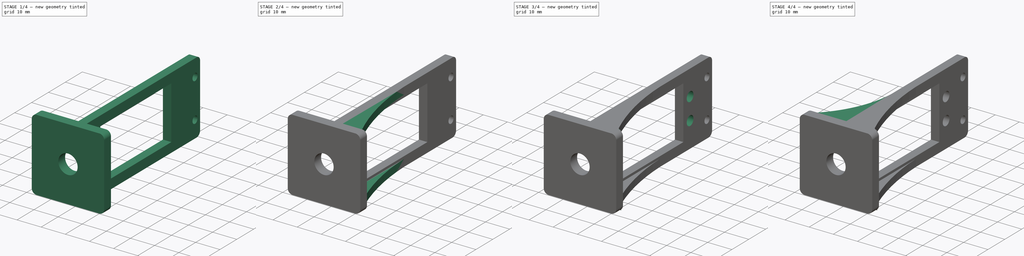
[diagram: build sequence overview — one tinted view per stage of 4, left to right]
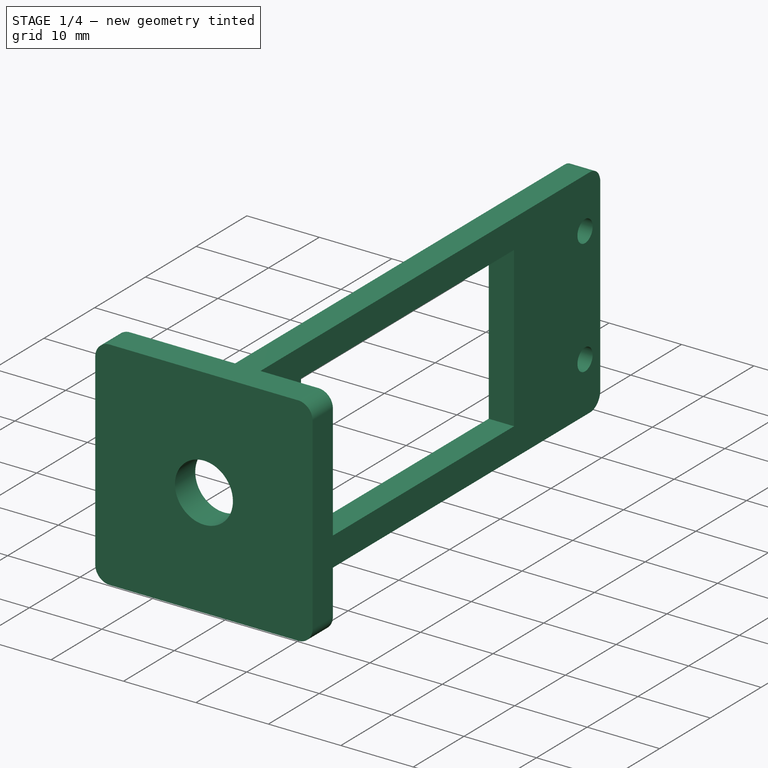
[diagram: stage 1 of 4 — iso view after this stage's code; geometry added in this stage tinted green]
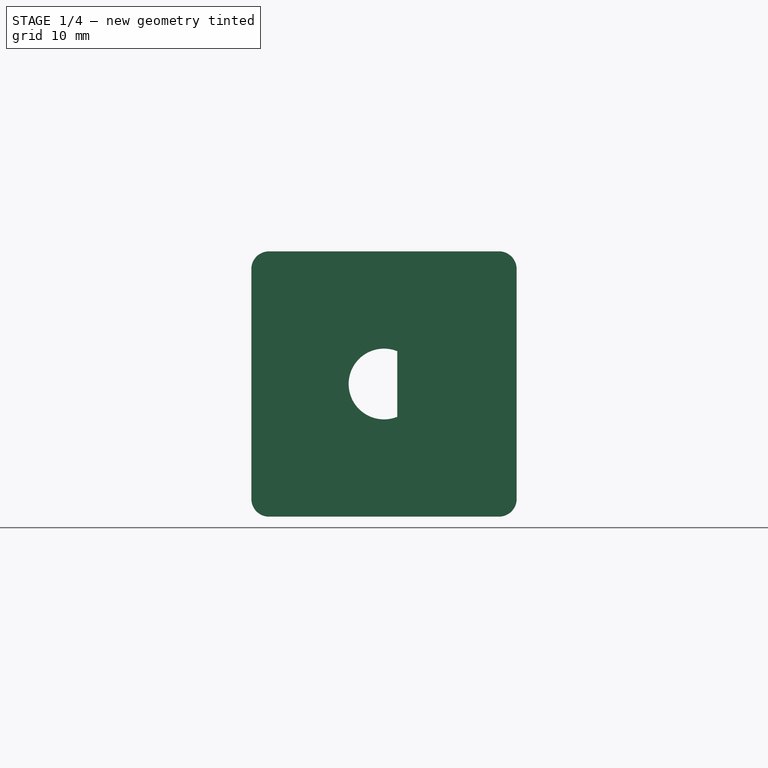
[diagram: stage 1 of 4 — front view after this stage's code; geometry added in this stage tinted green]
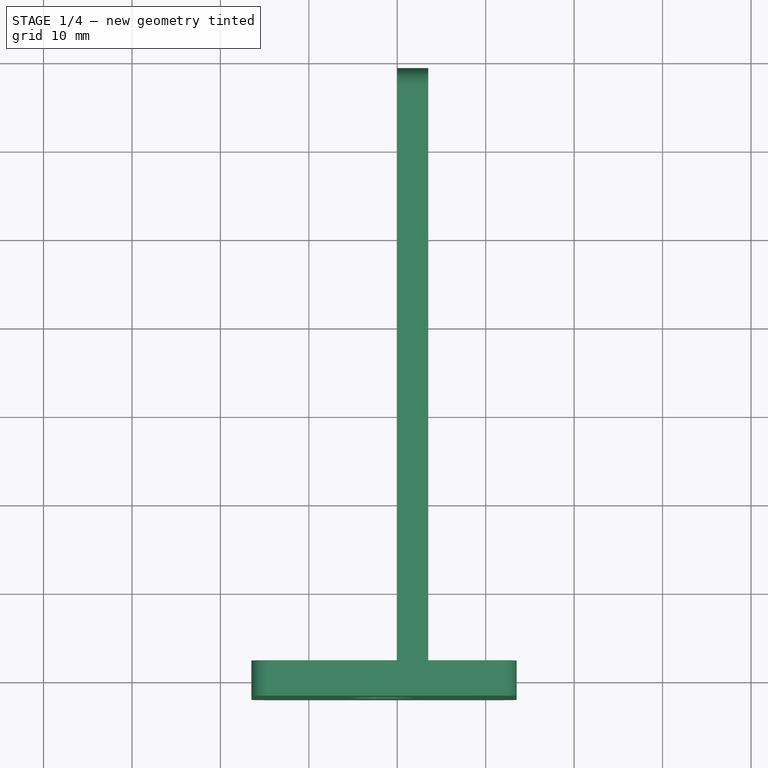
[diagram: stage 1 of 4 — top view after this stage's code; geometry added in this stage tinted green]
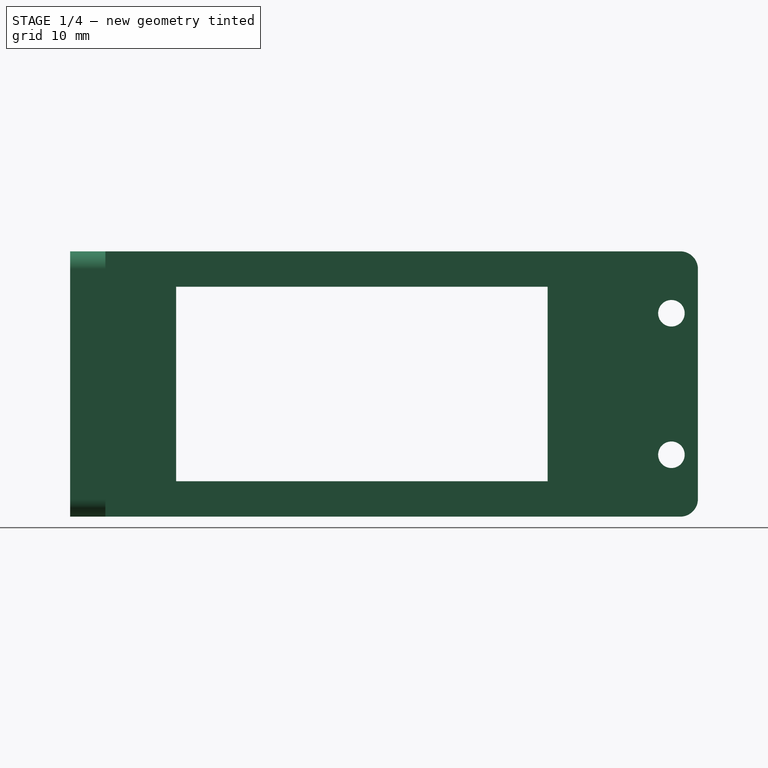
[diagram: stage 1 of 4 — right view after this stage's code; geometry added in this stage tinted green]
FCSTD DOCUMENT  (FreeCAD 0.18R4 (GitTag))
Label: Clesnya
License: All rights reserved
LicenseURL: http://en.wikipedia.org/wiki/All_rights_reserved
objects: Sketcher::SketchObject×8, PartDesign::Pad×6, PartDesign::Fillet×2, Part::Feature×1, PartDesign::Pocket×1, PartDesign::Body×1
note: 26 computed .brp shape members not serialized (recipe doc carries the construction recipe); baked Part::Feature solids carry a one-line shape summary decoded from their .brp

FEATURE [Sketcher::SketchObject] Sketch020
  MapMode = 5
  Placement = pos=(0,0,0) rot=(0.57735,0.57735,0.57735;2.0944rad)
  Support = -> [YZ_Plane004]
  sketch-geometry (14):
    g0: LineSegment StartX=-38 StartY=16 StartZ=0 EndX=27 EndY=16 EndZ=0
    g1: LineSegment StartX=29 StartY=14 StartZ=0 EndX=29 EndY=-12 EndZ=0
    g2: LineSegment StartX=27 StartY=-14 StartZ=0 EndX=-38 EndY=-14 EndZ=0
    g3: LineSegment StartX=-38 StartY=-14 StartZ=0 EndX=-38 EndY=16 EndZ=0
    g4: Circle CenterX=26 CenterY=9 CenterZ=0 NormalX=0 NormalY=0 NormalZ=1 AngleXU=0 Radius=1.5
    g5: Circle CenterX=26 CenterY=-7 CenterZ=0 NormalX=0 NormalY=0 NormalZ=1 AngleXU=0 Radius=1.5
    g6: GeomPoint X=0 Y=0 Z=0
    g7: Circle [constr] CenterX=0 CenterY=0 CenterZ=0 NormalX=0 NormalY=0 NormalZ=1 AngleXU=0 Radius=4
    g8: LineSegment StartX=-30 StartY=12 StartZ=0 EndX=12 EndY=12 EndZ=0
    g9: LineSegment StartX=12 StartY=12 StartZ=0 EndX=12 EndY=-10 EndZ=0
    g10: LineSegment StartX=12 StartY=-10 StartZ=0 EndX=-30 EndY=-10 EndZ=0
    g11: LineSegment StartX=-30 StartY=-10 StartZ=0 EndX=-30 EndY=12 EndZ=0
    g12: ArcOfCircle CenterX=27 CenterY=14 CenterZ=0 NormalX=0 NormalY=0 NormalZ=1 AngleXU=0 Radius=2 StartAngle=0 EndAngle=1.5708
    g13: ArcOfCircle CenterX=27 CenterY=-12 CenterZ=0 NormalX=0 NormalY=0 NormalZ=1 AngleXU=0 Radius=2 StartAngle=4.71239 EndAngle=6.28319
  constraints (37):
    c: Horizontal(g0)
    c: Horizontal(g2)
    c: Vertical(g1)
    c: Vertical(g3)
    c: Radius(g4) = 1.5
    c: Radius(g5) = 1.5
    c: DistanceY(g5,g4) = 16
    c: DistanceX(g6,g5) = 26
    c: DistanceY(g5,g6) = 7
    c: Coincident(g7,g6)
    c: Coincident(g8,g9)
    c: Coincident(g9,g10)
    c: Coincident(g10,g11)
    c: Coincident(g11,g8)
    c: Horizontal(g8)
    c: Horizontal(g10)
    c: Vertical(g9)
    c: Vertical(g11)
    c: DistanceX(g8,g8) = 42
    c: DistanceY(g9,g9) = 22
    c: Radius(g7) = 4
    c: Tangent(g0,g12) = 1.5708
    c: Tangent(g1,g12) = 1.5708
    c: Radius(g12) = 2
    c: Tangent(g2,g13) = 1.5708
    c: Tangent(g1,g13) = 1.5708
    c: Radius(g13) = 2
    c: DistanceX(g4,g5) = 0
    c: DistanceY(g2,g0) = 30
    c: DistanceX(g3,g1) = 67
    c: DistanceY(g2,g10) = 4
    c: DistanceX(g6,g9) = 12
    c: DistanceY(g9,g6) = 10
    c: DistanceX(g5,g1) = 3
    c: Coincident(g-1,g6)
    c: Coincident(g3,g2)
    c: Coincident(g3,g0)
FEATURE [PartDesign::Pad] Pad008
  Length = 3.5
  Length2 = 100
  Placement = pos=(0,0,0) rot=(0.57735,0.57735,0.57735;2.0944rad)
  Profile = -> Sketch020
  Type = 0
FEATURE [Sketcher::SketchObject] Sketch022
  MapMode = 5
  Placement = pos=(-1.7e-14,-38,2.5e-14) rot=(0.57735,0.57735,-0.57735;2.0944rad)
  sketch-geometry (9):
    g0: LineSegment StartX=-14 StartY=13.5 StartZ=0 EndX=12 EndY=13.5 EndZ=0
    g1: LineSegment StartX=14 StartY=11.5 StartZ=0 EndX=14 EndY=-14.5 EndZ=0
    g2: LineSegment StartX=12 StartY=-16.5 StartZ=0 EndX=-14 EndY=-16.5 EndZ=0
    g3: LineSegment StartX=-16 StartY=-14.5 StartZ=0 EndX=-16 EndY=11.5 EndZ=0
    g4: ArcOfCircle CenterX=-14 CenterY=11.5 CenterZ=0 NormalX=0 NormalY=0 NormalZ=1 AngleXU=0 Radius=2 StartAngle=1.5708 EndAngle=3.14159
    g5: ArcOfCircle CenterX=12 CenterY=11.5 CenterZ=0 NormalX=0 NormalY=0 NormalZ=1 AngleXU=0 Radius=2 StartAngle=3e-16 EndAngle=1.5708
    g6: ArcOfCircle CenterX=12 CenterY=-14.5 CenterZ=0 NormalX=0 NormalY=0 NormalZ=1 AngleXU=0 Radius=2 StartAngle=4.71239 EndAngle=6.28319
    g7: ArcOfCircle CenterX=-14 CenterY=-14.5 CenterZ=0 NormalX=0 NormalY=0 NormalZ=1 AngleXU=0 Radius=2 StartAngle=3.14159 EndAngle=4.71239
    g8: Circle CenterX=-1 CenterY=-1.5 CenterZ=0 NormalX=0 NormalY=0 NormalZ=1 AngleXU=0 Radius=4
  constraints (22):
    c: Horizontal(g0)
    c: Horizontal(g2)
    c: Vertical(g1)
    c: Vertical(g3)
    c: Tangent(g3,g4) = 1.5708
    c: Tangent(g0,g4) = 1.5708
    c: Tangent(g0,g5) = 1.5708
    c: Tangent(g1,g5) = 1.5708
    c: Tangent(g2,g6) = 1.5708
    c: Tangent(g1,g6) = 1.5708
    c: Tangent(g3,g7) = 1.5708
    c: Tangent(g2,g7) = 1.5708
    c: Radius(g7) = 2
    c: Radius(g6) = 2
    c: Radius(g5) = 2
    c: Radius(g4) = 2
    c: DistanceX(g0,g0) = 26
    c: DistanceY(g1,g1) = 26
    c: Radius(g8) = 4
    c: DistanceY(g8,g-1) = 1.5
    c: DistanceX(g8,g-1) = 1
    c: Symmetric(g4,g6,g8)
FEATURE [PartDesign::Pad] Pad009
  BaseFeature = -> Pad008
  Length = 4
  Length2 = 100
  Placement = pos=(0,0,0) rot=(0.57735,0.57735,0.57735;2.0944rad)
  Profile = -> Sketch022
  Type = 0
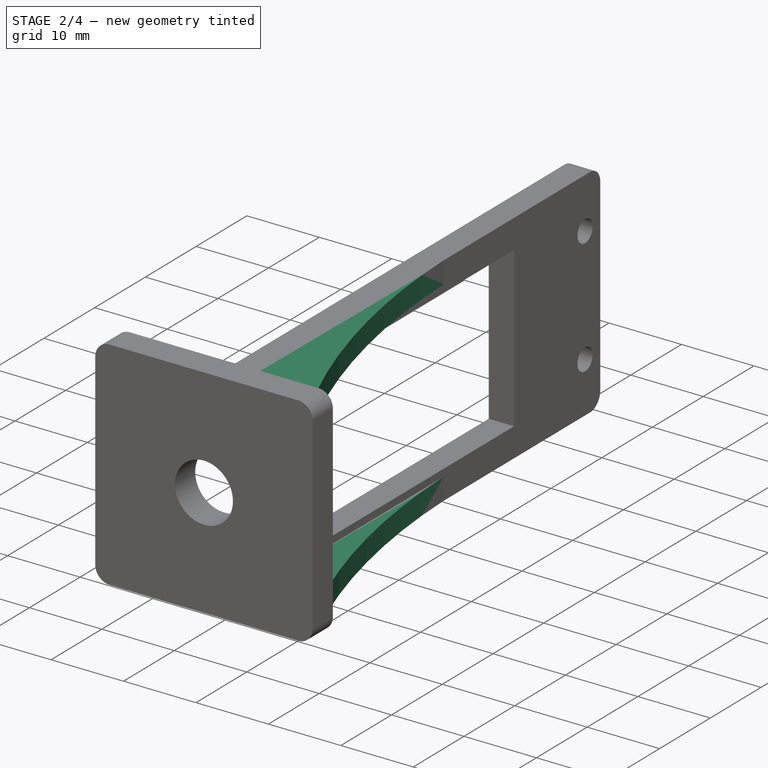
[diagram: stage 2 of 4 — iso view after this stage's code; geometry added in this stage tinted green]
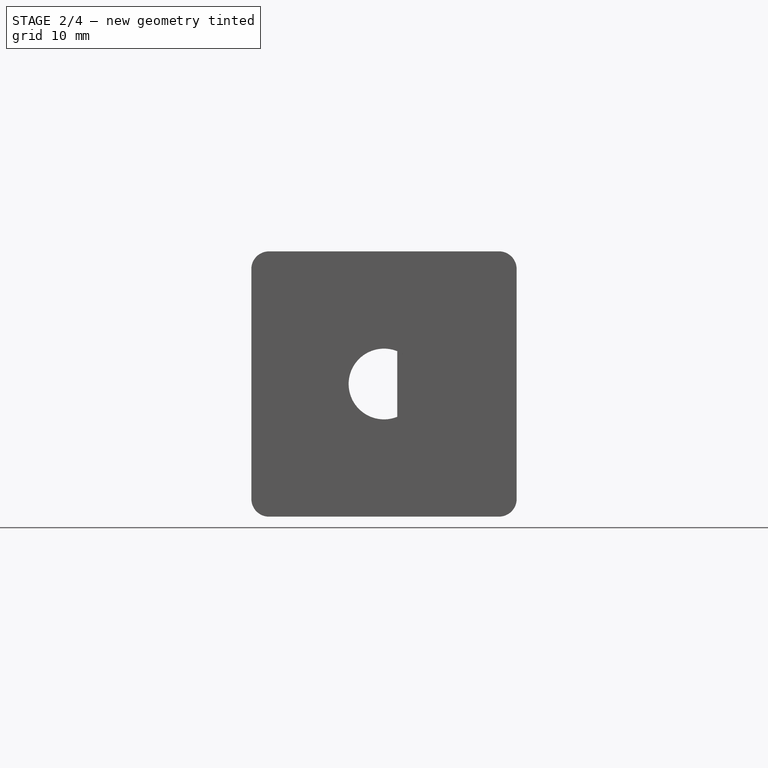
[diagram: stage 2 of 4 — front view after this stage's code; geometry added in this stage tinted green]
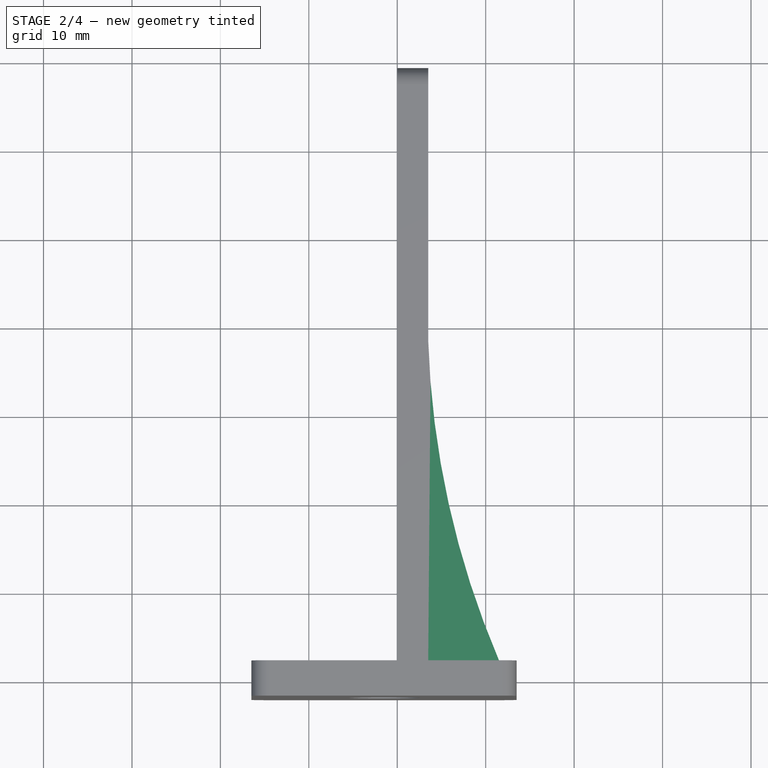
[diagram: stage 2 of 4 — top view after this stage's code; geometry added in this stage tinted green]
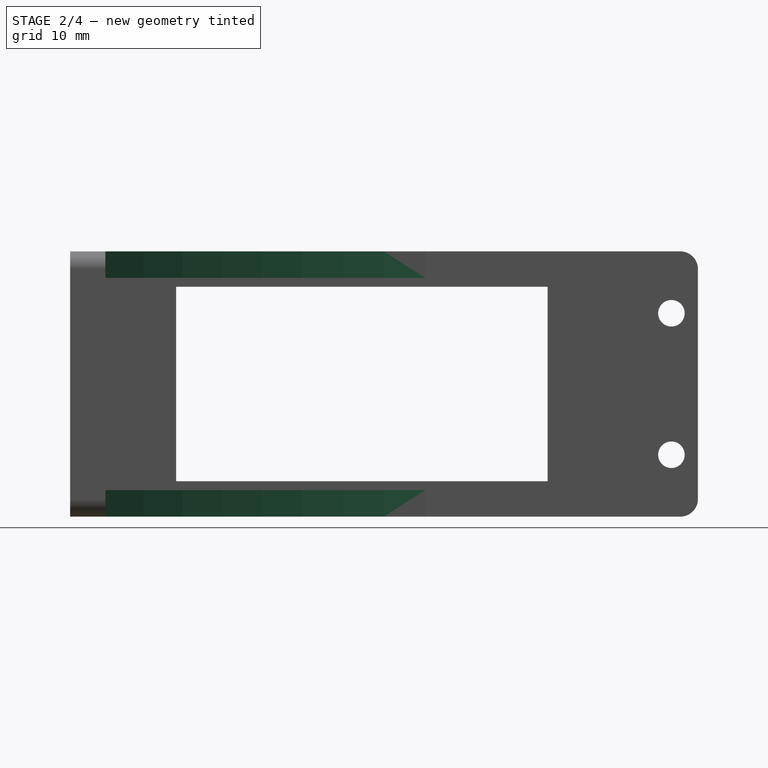
[diagram: stage 2 of 4 — right view after this stage's code; geometry added in this stage tinted green]
FEATURE [Sketcher::SketchObject] Sketch
  ExternalGeometry = -> [Pad009]
  MapMode = 5
  Placement = pos=(-4.5e-15,7e-15,16) rot=(0,0,-1;1.5708rad)
  Support = -> [Pad009]
  sketch-geometry (3):
    g0: LineSegment StartX=-1.18158 StartY=3.45 StartZ=0 EndX=38 EndY=3.5 EndZ=0
    g1: LineSegment StartX=38 StartY=11.5 StartZ=0 EndX=38 EndY=3.5 EndZ=0
    g2: ArcOfCircle CenterX=-1.30919 CenterY=103.45 CenterZ=0 NormalX=0 NormalY=0 NormalZ=1 AngleXU=0 Radius=100 StartAngle=4.71367 EndAngle=5.11638
  constraints (7):
    c: Coincident(g1,g-4)
    c: Coincident(g2,g1)
    c: Tangent(g2,g0) = -1.5708
    c: Coincident(g1,g0)
    c: Radius(g2) = 100
    c: Coincident(g-3,g0)
    c: DistanceY(g-1,g0) = 3.45
FEATURE [PartDesign::Pad] Pad
  BaseFeature = -> Pad009
  Length = 3
  Length2 = 100
  Placement = pos=(0,0,0) rot=(0.57735,0.57735,0.57735;2.0944rad)
  Profile = -> Sketch
  Reversed = true
  Type = 0
FEATURE [Sketcher::SketchObject] Sketch023
  ExternalGeometry = -> [Pad]
  MapMode = 5
  Placement = pos=(3.9e-15,-6.2e-15,-14) rot=(0.707107,0.707107,0;3.14159rad)
  Support = -> [Pad]
  sketch-geometry (3):
    g0: LineSegment StartX=-38 StartY=11.5 StartZ=0 EndX=-38 EndY=3.5 EndZ=0
    g1: LineSegment StartX=-38 StartY=3.5 StartZ=0 EndX=1.18158 EndY=3.45 EndZ=0
    g2: ArcOfCircle CenterX=1.30919 CenterY=103.45 CenterZ=0 NormalX=0 NormalY=0 NormalZ=1 AngleXU=0 Radius=100 StartAngle=4.3084 EndAngle=4.71111
  constraints (7):
    c: Coincident(g1,g0)
    c: Coincident(g0,g-3)
    c: Coincident(g0,g-4)
    c: DistanceY(g-1,g1) = 3.45
    c: Coincident(g2,g0)
    c: Tangent(g2,g1) = -1.5708
    c: Radius(g2) = 100
FEATURE [PartDesign::Pad] Pad010
  BaseFeature = -> Pad
  Length = 3
  Length2 = 100
  Placement = pos=(0,0,0) rot=(0.57735,0.57735,0.57735;2.0944rad)
  Profile = -> Sketch023
  Reversed = true
  Type = 0
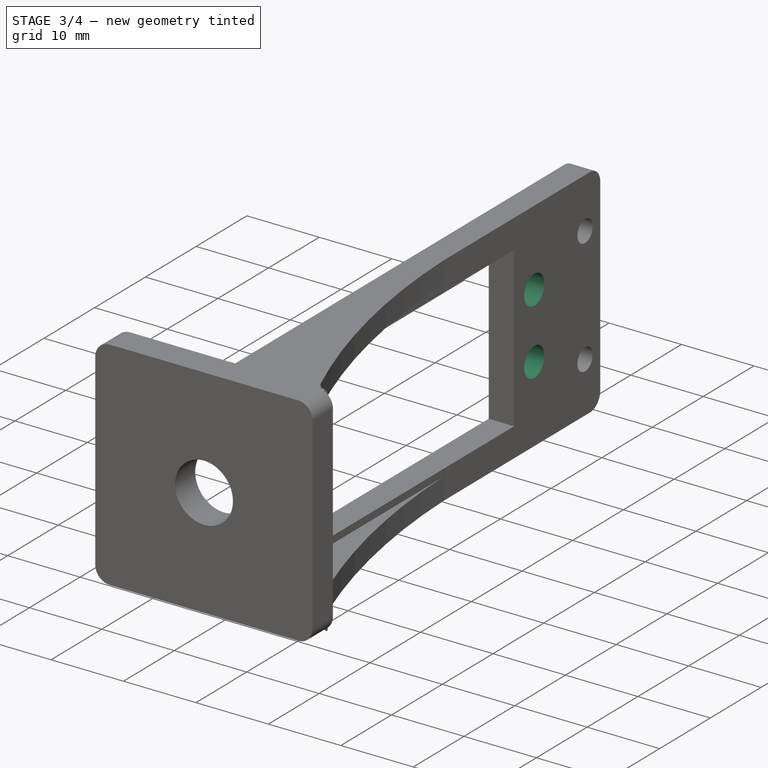
[diagram: stage 3 of 4 — iso view after this stage's code; geometry added in this stage tinted green]
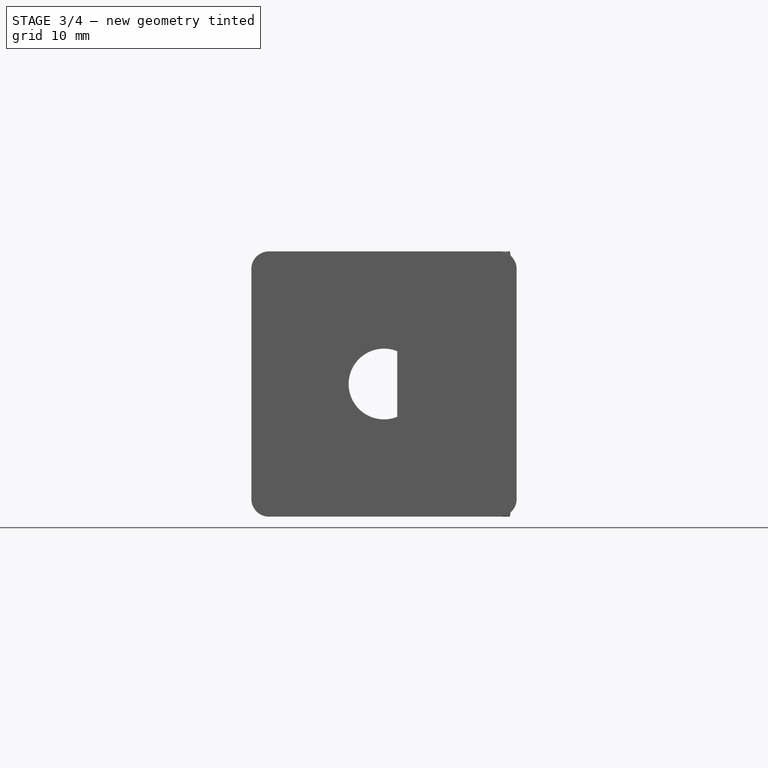
[diagram: stage 3 of 4 — front view after this stage's code; geometry added in this stage tinted green]
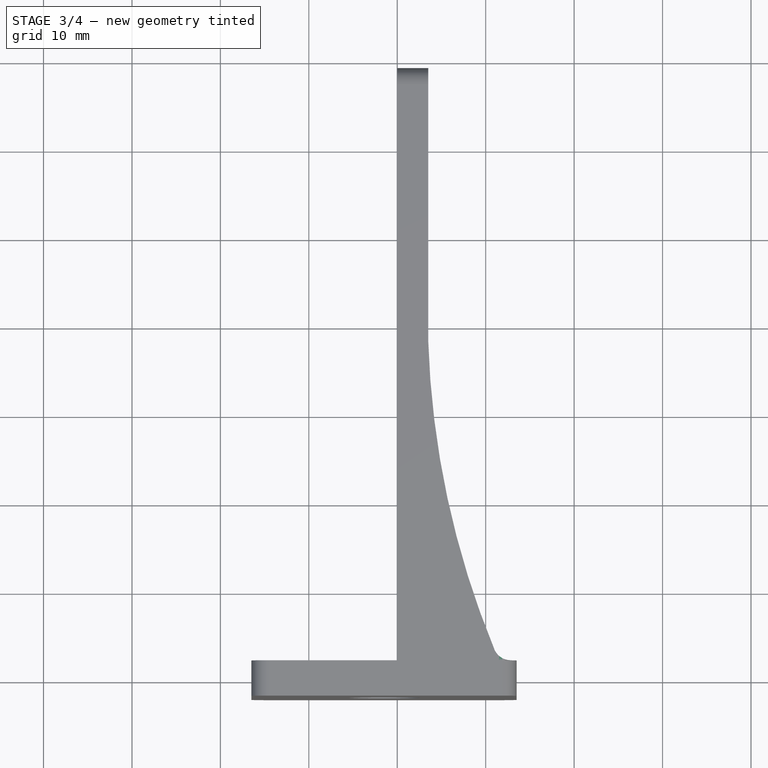
[diagram: stage 3 of 4 — top view after this stage's code; geometry added in this stage tinted green]
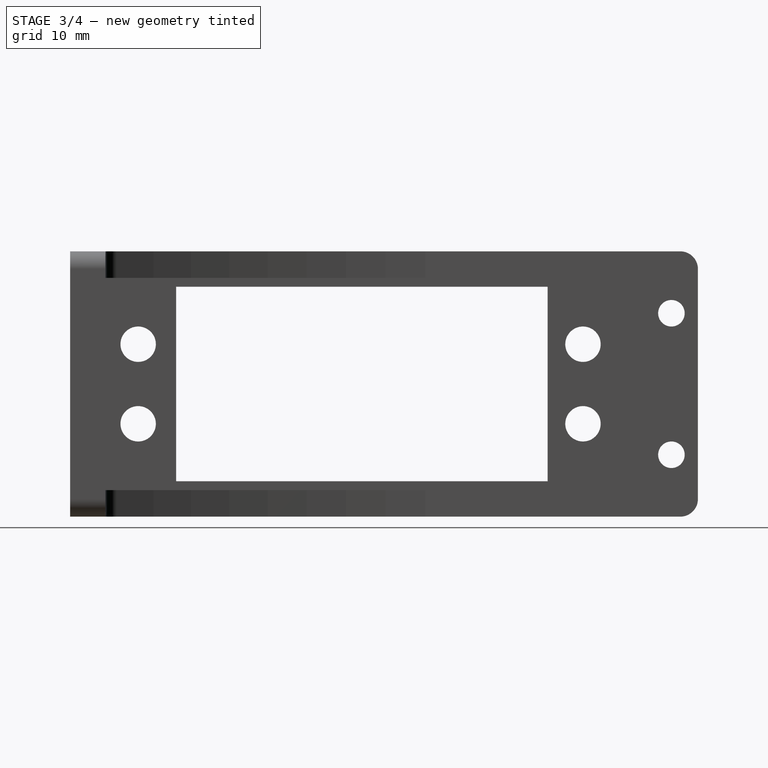
[diagram: stage 3 of 4 — right view after this stage's code; geometry added in this stage tinted green]
FEATURE [Sketcher::SketchObject] Sketch024
  MapMode = 5
  Placement = pos=(0,0,0) rot=(0.57735,0.57735,-0.57735;4.18879rad)
  Support = -> [Pad010]
FEATURE [Part::Feature] Part__Feature003  label="Servo MG996R №4"
  Placement = pos=(-338,4,33) rot=(-1,0,0;1.5708rad)
  shape: bbox 53.6 x 21.65 x 47.6 mm, 253 faces (baked)
FEATURE [Sketcher::SketchObject] Sketch025
  ExternalGeometry = -> [Pad010]
  MapMode = 5
  Placement = pos=(3.5,-8e-16,8e-16) rot=(0.57735,0.57735,0.57735;2.0944rad)
  Support = -> [Pad010]
  sketch-geometry (4):
    g0: Circle CenterX=-34.3 CenterY=5.5 CenterZ=0 NormalX=0 NormalY=0 NormalZ=1 AngleXU=0 Radius=2
    g1: Circle CenterX=-34.3 CenterY=-3.5 CenterZ=0 NormalX=0 NormalY=0 NormalZ=1 AngleXU=0 Radius=2
    g2: Circle CenterX=16 CenterY=5.5 CenterZ=0 NormalX=0 NormalY=0 NormalZ=1 AngleXU=0 Radius=2
    g3: Circle CenterX=16 CenterY=-3.5 CenterZ=0 NormalX=0 NormalY=0 NormalZ=1 AngleXU=0 Radius=2
  constraints (12):
    c: DistanceX(g-4,g3) = 4
    c: Radius(g3) = 2
    c: DistanceY(g-4,g3) = 6.5
    c: Radius(g2) = 2
    c: DistanceY(g2,g-3) = 6.5
    c: DistanceX(g-3,g2) = 4
    c: Radius(g0) = 2
    c: Radius(g1) = 2
    c: DistanceX(g1,g-4) = 4.3
    c: DistanceY(g-4,g1) = 6.5
    c: DistanceX(g0,g-3) = 4.3
    c: DistanceY(g0,g-3) = 6.5
FEATURE [PartDesign::Pocket] Pocket
  BaseFeature = -> Pad010
  Length = 4
  Length2 = 100
  Placement = pos=(0,0,0) rot=(0.57735,0.57735,0.57735;2.0944rad)
  Profile = -> Sketch025
  Type = 0
FEATURE [PartDesign::Fillet] Fillet
  Base = -> Pocket [Edge89]
  BaseFeature = -> Pocket
  Placement = pos=(0,0,0) rot=(0.57735,0.57735,0.57735;2.0944rad)
  Radius = 2
FEATURE [PartDesign::Fillet] Fillet001
  Base = -> Fillet [Edge4]
  BaseFeature = -> Fillet
  Placement = pos=(0,0,0) rot=(0.57735,0.57735,0.57735;2.0944rad)
  Radius = 2
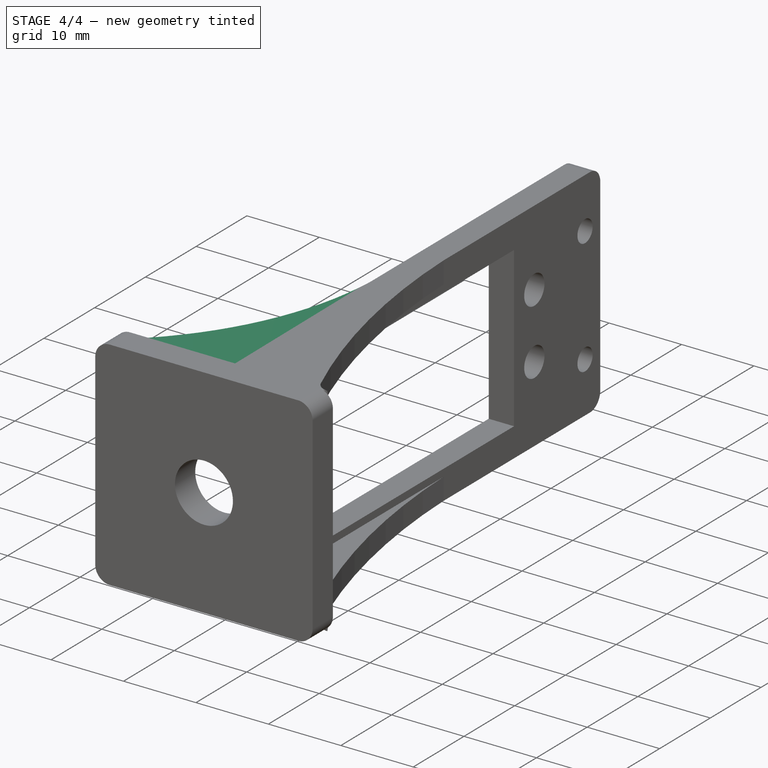
[diagram: stage 4 of 4 — iso view after this stage's code; geometry added in this stage tinted green]
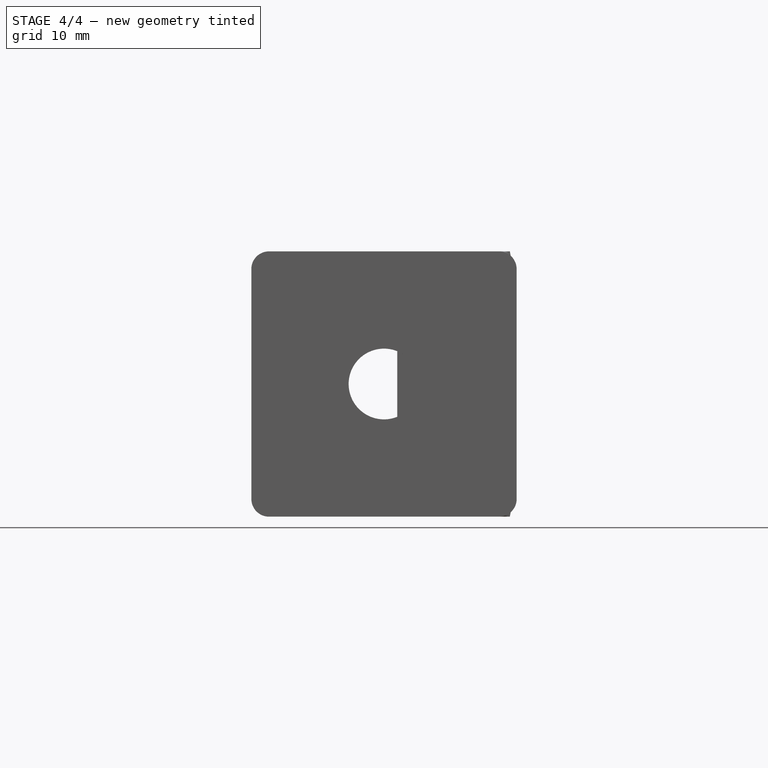
[diagram: stage 4 of 4 — front view after this stage's code; geometry added in this stage tinted green]
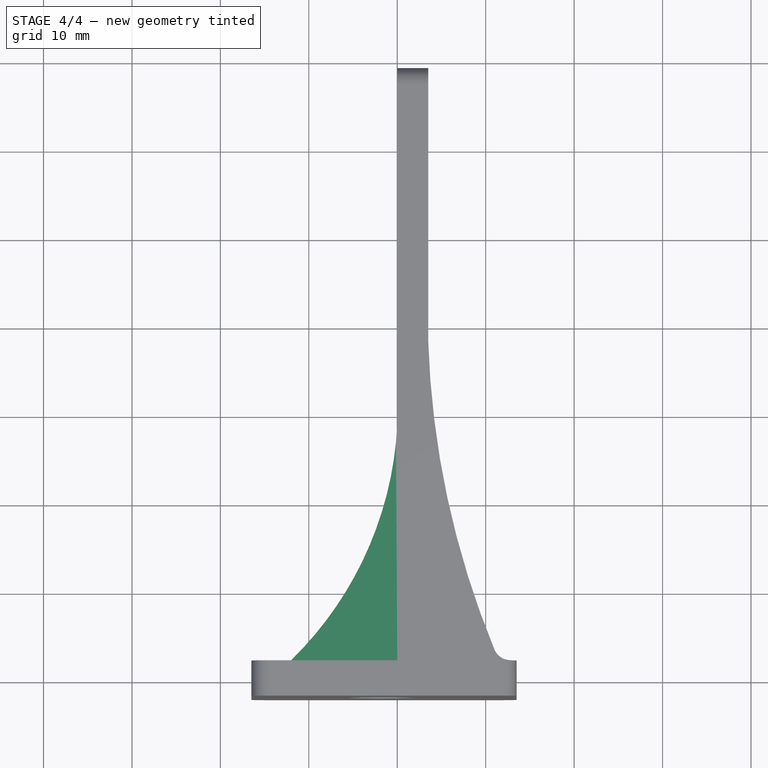
[diagram: stage 4 of 4 — top view after this stage's code; geometry added in this stage tinted green]
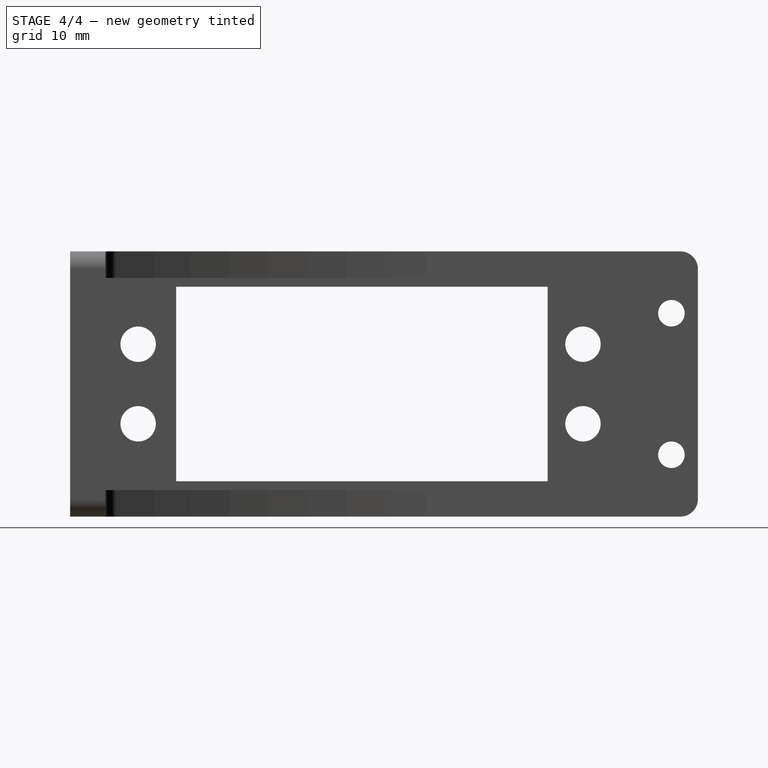
[diagram: stage 4 of 4 — right view after this stage's code; geometry added in this stage tinted green]
FEATURE [Sketcher::SketchObject] Sketch026
  ExternalGeometry = -> [Fillet001]
  MapMode = 5
  Placement = pos=(-3.1e-15,-9.4e-15,-14) rot=(0.707107,0.707107,0;3.14159rad)
  Support = -> [Fillet001]
  sketch-geometry (3):
    g0: LineSegment StartX=-9.45537 StartY=0.05 StartZ=0 EndX=-38 EndY=-7.1e-15 EndZ=0
    g1: LineSegment StartX=-38 StartY=-12 StartZ=0 EndX=-38 EndY=-7.1e-15 EndZ=0
    g2: ArcOfCircle CenterX=-9.3853 CenterY=-39.9499 CenterZ=0 NormalX=0 NormalY=0 NormalZ=1 AngleXU=0 Radius=40 StartAngle=1.57255 EndAngle=2.36795
  constraints (8):
    c: Coincident(g1,g0)
    c: Tangent(g2,g0) = -1.5708
    c: Radius(g2) = 40
    c: Coincident(g2,g1)
    c: Coincident(g0,g-3)
    c: Vertical(g1)
    c: DistanceY(g1,g1) = 12
    c: DistanceY(g-1,g0) = 0.05
FEATURE [PartDesign::Pad] Pad011
  BaseFeature = -> Fillet001
  Length = 3
  Length2 = 100
  Placement = pos=(0,0,0) rot=(0.57735,0.57735,0.57735;2.0944rad)
  Profile = -> Sketch026
  Reversed = true
  Type = 0
FEATURE [Sketcher::SketchObject] Sketch027
  ExternalGeometry = -> [Pad011]
  MapMode = 5
  Placement = pos=(3.5e-15,1.16e-14,16) rot=(0,0,-1;1.5708rad)
  Support = -> [Pad011]
  sketch-geometry (3):
    g0: LineSegment StartX=9.45537 StartY=0.05 StartZ=0 EndX=38 EndY=-2.66e-14 EndZ=0
    g1: LineSegment StartX=38 StartY=-2.66e-14 StartZ=0 EndX=38 EndY=-12 EndZ=0
    g2: ArcOfCircle CenterX=9.3853 CenterY=-39.9499 CenterZ=0 NormalX=0 NormalY=0 NormalZ=1 AngleXU=0 Radius=40 StartAngle=0.773647 EndAngle=1.56904
  constraints (8):
    c: Coincident(g0,g1)
    c: Vertical(g1)
    c: DistanceY(g1,g1) = 12
    c: Coincident(g2,g1)
    c: Tangent(g2,g0) = 1.5708
    c: Radius(g2) = 40
    c: Coincident(g0,g-3)
    c: DistanceY(g-1,g0) = 0.05
FEATURE [PartDesign::Pad] Pad012
  BaseFeature = -> Pad011
  Length = 3
  Length2 = 100
  Placement = pos=(0,0,0) rot=(0.57735,0.57735,0.57735;2.0944rad)
  Profile = -> Sketch027
  Reversed = true
  Type = 0
FEATURE [PartDesign::Body] Body004  label="Клешня"
  Group = -> [Sketch020,Pad008,Sketch022,Pad009,Sketch,Pad,Sketch023,Pad010,Sketch024,Sketch025,Pocket,Fillet,Fillet001,Sketch026,Pad011,Sketch027,Pad012]
  Origin = -> Origin004
  Placement = pos=(-327,-5,-9e-15) rot=(0.57735,-0.57735,0.57735;2.0944rad)
  Tip = -> Pad012
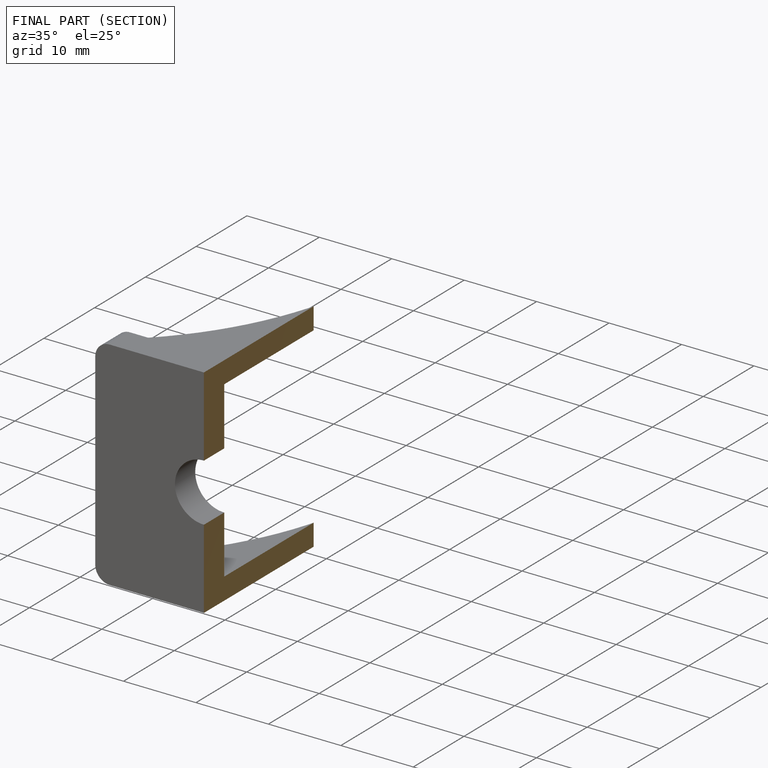
[diagram: finished part — half-section view (interior)]
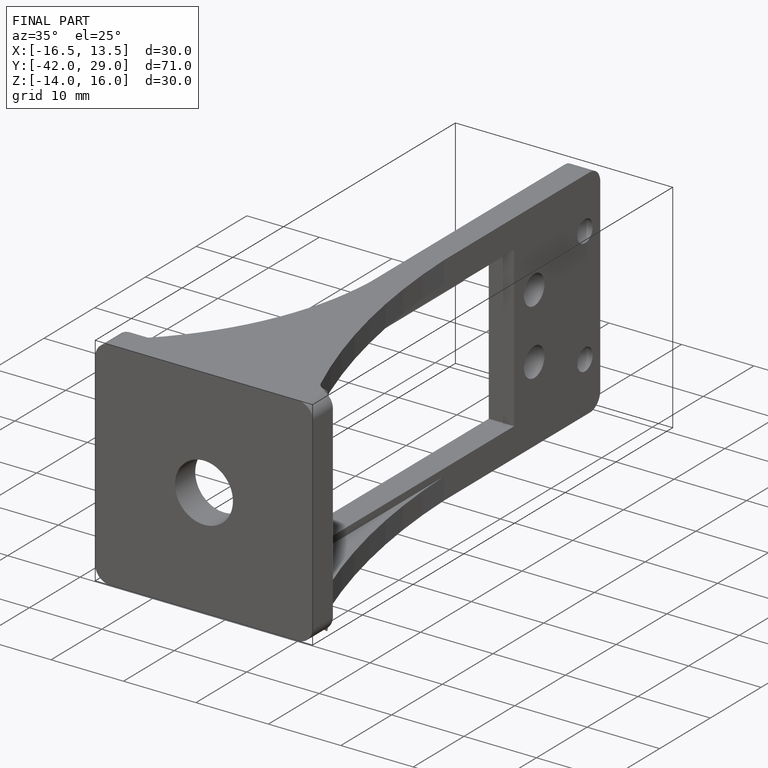
[diagram: finished part — iso view with bounding-box wireframe]
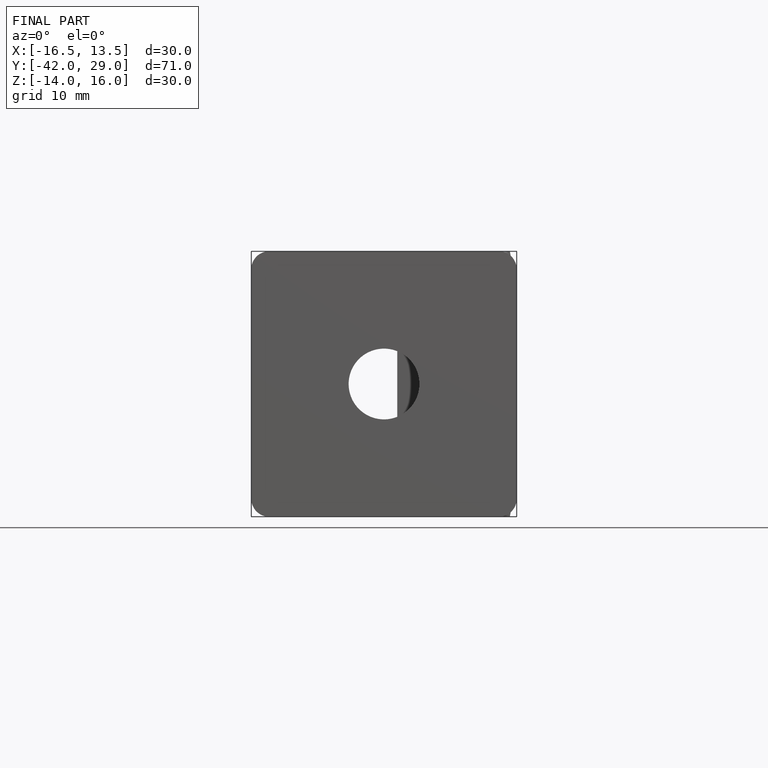
[diagram: finished part — front view with bounding-box wireframe]
